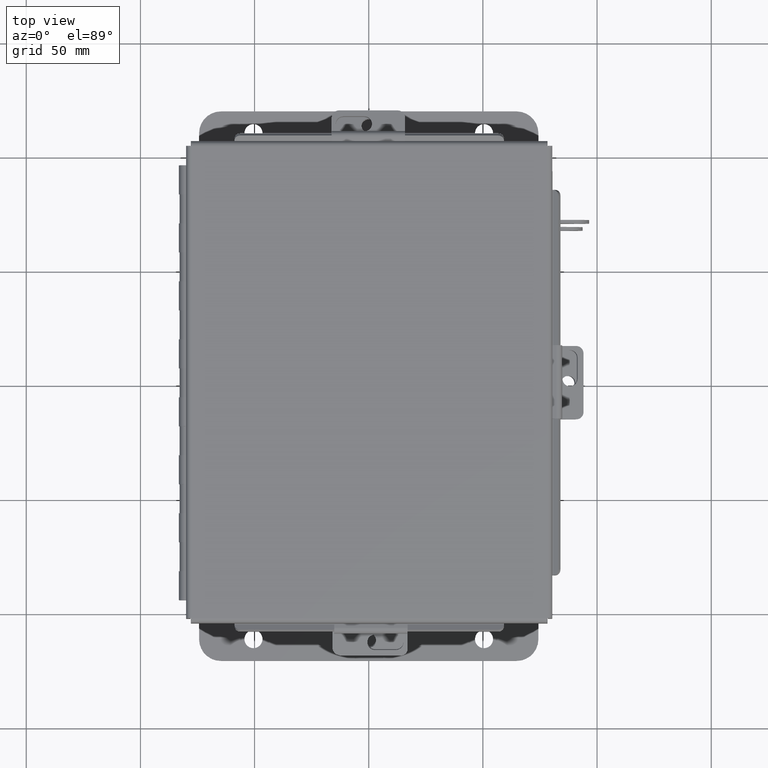
[diagram: clean part render]
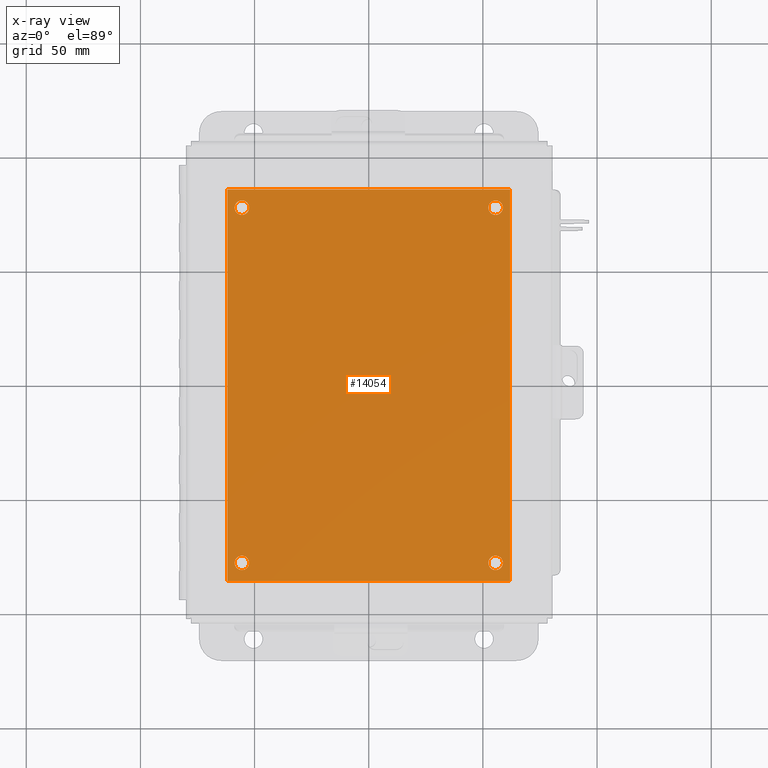
[diagram: x-ray — body ghosted, one internal face saturated and labeled with its STEP entity id]
A machine part, top view, then the same camera in x-ray: the body is ghosted and one INTERNAL B-rep face — a face not visible from any outside direction — is saturated and labeled: STEP entity #14054.
In plain terms, the highlighted planar face has unit normal (0, 0, -1).
Its self-contained STEP definition (entity closure, byte-faithful):
#297 = ORIENTED_EDGE ( 'NONE', *, *, #9512, .F. ) ;
#352 = AXIS2_PLACEMENT_3D ( 'NONE', #9083, #1986, #10310 ) ;
#687 = CARTESIAN_POINT ( 'NONE',  ( 4.750000000000000000, 6.437999999999997900, 0.0000000000000000000 ) ) ;
#771 = CIRCLE ( 'NONE', #2818, 0.1250000000000000300 ) ;
#871 = CARTESIAN_POINT ( 'NONE',  ( 0.3750000000000020000, 0.3120000000000015000, 0.0000000000000000000 ) ) ;
#1715 = EDGE_LOOP ( 'NONE', ( #9722, #7847 ) ) ;
#1952 = EDGE_CURVE ( 'NONE', #6156, #12647, #12125, .T. ) ;
#1986 = DIRECTION ( 'NONE',  ( 0.0000000000000000000, 0.0000000000000000000, 1.000000000000000000 ) ) ;
#2142 = VERTEX_POINT ( 'NONE', #11880 ) ;
#2636 = CARTESIAN_POINT ( 'NONE',  ( 0.0000000000000000000, 0.0000000000000000000, 0.0000000000000000000 ) ) ;
#2818 = AXIS2_PLACEMENT_3D ( 'NONE', #6455, #14737, #7664 ) ;
#3068 = EDGE_LOOP ( 'NONE', ( #7428, #6216 ) ) ;
#3304 = CIRCLE ( 'NONE', #352, 0.1249999999999999000 ) ;
#3471 = CARTESIAN_POINT ( 'NONE',  ( 0.0000000000000000000, 0.0000000000000000000, 0.0000000000000000000 ) ) ;
#3575 = CARTESIAN_POINT ( 'NONE',  ( 0.3750000000000001100, 6.437999999999997900, 0.0000000000000000000 ) ) ;
#3589 = ORIENTED_EDGE ( 'NONE', *, *, #14144, .F. ) ;
#3619 = VECTOR ( 'NONE', #7074, 39.37007874015748100 ) ;
#3708 = CARTESIAN_POINT ( 'NONE',  ( 4.625000000000001800, 0.3120000000000020500, 0.0000000000000000000 ) ) ;
#3731 = EDGE_CURVE ( 'NONE', #11478, #13045, #8740, .T. ) ;
#3876 = EDGE_CURVE ( 'NONE', #13778, #11002, #10425, .T. ) ;
#3911 = DIRECTION ( 'NONE',  ( 0.0000000000000000000, 0.0000000000000000000, -1.000000000000000000 ) ) ;
#3919 = FACE_OUTER_BOUND ( 'NONE', #12716, .T. ) ;
#3943 = LINE ( 'NONE', #4819, #13020 ) ;
#4131 = CARTESIAN_POINT ( 'NONE',  ( 0.2500000000000020000, 0.3120000000000015000, 0.0000000000000000000 ) ) ;
#4149 = VECTOR ( 'NONE', #15083, 39.37007874015748100 ) ;
#4295 = FACE_BOUND ( 'NONE', #1715, .T. ) ;
#4369 = AXIS2_PLACEMENT_3D ( 'NONE', #5392, #13644, #6558 ) ;
#4432 = AXIS2_PLACEMENT_3D ( 'NONE', #12370, #5290, #13550 ) ;
#4769 = DIRECTION ( 'NONE',  ( 0.0000000000000000000, 1.000000000000000000, 0.0000000000000000000 ) ) ;
#4819 = CARTESIAN_POINT ( 'NONE',  ( 4.875000000000000000, 0.0000000000000000000, 0.0000000000000000000 ) ) ;
#4917 = DIRECTION ( 'NONE',  ( 1.000000000000000000, 0.0000000000000000000, 0.0000000000000000000 ) ) ;
#5101 = AXIS2_PLACEMENT_3D ( 'NONE', #4131, #12426, #5352 ) ;
#5290 = DIRECTION ( 'NONE',  ( 0.0000000000000000000, 0.0000000000000000000, 1.000000000000000000 ) ) ;
#5352 = DIRECTION ( 'NONE',  ( -1.000000000000000000, 0.0000000000000000000, 0.0000000000000000000 ) ) ;
#5392 = CARTESIAN_POINT ( 'NONE',  ( 4.625000000000001800, 0.3120000000000020500, 0.0000000000000000000 ) ) ;
#5427 = ORIENTED_EDGE ( 'NONE', *, *, #13425, .F. ) ;
#5547 = VERTEX_POINT ( 'NONE', #3575 ) ;
#5745 = CARTESIAN_POINT ( 'NONE',  ( 4.500000000000000900, 6.437999999999997900, 0.0000000000000000000 ) ) ;
#6027 = CARTESIAN_POINT ( 'NONE',  ( 4.500000000000002700, 0.3120000000000020500, 0.0000000000000000000 ) ) ;
#6156 = VERTEX_POINT ( 'NONE', #6179 ) ;
#6179 = CARTESIAN_POINT ( 'NONE',  ( 4.875000000000000000, 6.750000000000000000, 0.0000000000000000000 ) ) ;
#6216 = ORIENTED_EDGE ( 'NONE', *, *, #6722, .F. ) ;
#6455 = CARTESIAN_POINT ( 'NONE',  ( 0.2500000000000000600, 6.437999999999997900, 0.0000000000000000000 ) ) ;
#6461 = CARTESIAN_POINT ( 'NONE',  ( 0.1250000000000019200, 0.3120000000000015000, 0.0000000000000000000 ) ) ;
#6465 = ORIENTED_EDGE ( 'NONE', *, *, #3731, .T. ) ;
#6558 = DIRECTION ( 'NONE',  ( 1.000000000000000000, 0.0000000000000000000, 0.0000000000000000000 ) ) ;
#6583 = CIRCLE ( 'NONE', #14834, 0.1249999999999999000 ) ;
#6615 = CARTESIAN_POINT ( 'NONE',  ( 4.625000000000000900, 6.437999999999997900, 0.0000000000000000000 ) ) ;
#6647 = ORIENTED_EDGE ( 'NONE', *, *, #1952, .T. ) ;
#6654 = ORIENTED_EDGE ( 'NONE', *, *, #7996, .T. ) ;
#6722 = EDGE_CURVE ( 'NONE', #14592, #11968, #6583, .T. ) ;
#6790 = LINE ( 'NONE', #3471, #3619 ) ;
#7073 = DIRECTION ( 'NONE',  ( 0.0000000000000000000, 0.0000000000000000000, 1.000000000000000000 ) ) ;
#7074 = DIRECTION ( 'NONE',  ( -0.0000000000000000000, -1.000000000000000000, -0.0000000000000000000 ) ) ;
#7080 = FACE_BOUND ( 'NONE', #10742, .T. ) ;
#7307 = AXIS2_PLACEMENT_3D ( 'NONE', #14167, #7073, #15341 ) ;
#7428 = ORIENTED_EDGE ( 'NONE', *, *, #12058, .F. ) ;
#7485 = CARTESIAN_POINT ( 'NONE',  ( 0.0000000000000000000, 6.750000000000000000, 0.0000000000000000000 ) ) ;
#7623 = CARTESIAN_POINT ( 'NONE',  ( 0.0000000000000000000, 0.0000000000000000000, 0.0000000000000000000 ) ) ;
#7664 = DIRECTION ( 'NONE',  ( 1.000000000000000000, 0.0000000000000000000, 0.0000000000000000000 ) ) ;
#7745 = CIRCLE ( 'NONE', #4369, 0.1249999999999999000 ) ;
#7768 = VERTEX_POINT ( 'NONE', #871 ) ;
#7817 = CIRCLE ( 'NONE', #7307, 0.1250000000000000600 ) ;
#7823 = DIRECTION ( 'NONE',  ( -1.000000000000000000, 0.0000000000000000000, 0.0000000000000000000 ) ) ;
#7847 = ORIENTED_EDGE ( 'NONE', *, *, #3876, .F. ) ;
#7996 = EDGE_CURVE ( 'NONE', #13045, #6156, #3943, .T. ) ;
#7997 = CARTESIAN_POINT ( 'NONE',  ( 0.0000000000000000000, 6.750000000000000000, 0.0000000000000000000 ) ) ;
#8740 = LINE ( 'NONE', #7623, #11894 ) ;
#8957 = CIRCLE ( 'NONE', #5101, 0.1250000000000000600 ) ;
#9083 = CARTESIAN_POINT ( 'NONE',  ( 4.625000000000000900, 6.437999999999997900, 0.0000000000000000000 ) ) ;
#9189 = EDGE_LOOP ( 'NONE', ( #9240, #5427 ) ) ;
#9240 = ORIENTED_EDGE ( 'NONE', *, *, #14524, .F. ) ;
#9512 = EDGE_CURVE ( 'NONE', #5547, #2142, #10243, .T. ) ;
#9722 = ORIENTED_EDGE ( 'NONE', *, *, #10400, .F. ) ;
#9736 = PLANE ( 'NONE',  #14249 ) ;
#10243 = CIRCLE ( 'NONE', #4432, 0.1250000000000000300 ) ;
#10261 = FACE_BOUND ( 'NONE', #9189, .T. ) ;
#10310 = DIRECTION ( 'NONE',  ( -1.000000000000000000, 0.0000000000000000000, 0.0000000000000000000 ) ) ;
#10400 = EDGE_CURVE ( 'NONE', #11002, #13778, #3304, .T. ) ;
#10425 = CIRCLE ( 'NONE', #14792, 0.1249999999999999000 ) ;
#10595 = CARTESIAN_POINT ( 'NONE',  ( 4.875000000000000000, 0.0000000000000000000, 0.0000000000000000000 ) ) ;
#10742 = EDGE_LOOP ( 'NONE', ( #297, #3589 ) ) ;
#11002 = VERTEX_POINT ( 'NONE', #687 ) ;
#11036 = CARTESIAN_POINT ( 'NONE',  ( 0.0000000000000000000, 0.0000000000000000000, 0.0000000000000000000 ) ) ;
#11427 = ORIENTED_EDGE ( 'NONE', *, *, #12375, .T. ) ;
#11478 = VERTEX_POINT ( 'NONE', #2636 ) ;
#11880 = CARTESIAN_POINT ( 'NONE',  ( 0.1250000000000000600, 6.437999999999997900, 0.0000000000000000000 ) ) ;
#11894 = VECTOR ( 'NONE', #14696, 39.37007874015748100 ) ;
#11968 = VERTEX_POINT ( 'NONE', #14506 ) ;
#12018 = DIRECTION ( 'NONE',  ( 0.0000000000000000000, 0.0000000000000000000, 1.000000000000000000 ) ) ;
#12058 = EDGE_CURVE ( 'NONE', #11968, #14592, #7745, .T. ) ;
#12125 = LINE ( 'NONE', #7997, #4149 ) ;
#12211 = DIRECTION ( 'NONE',  ( -1.000000000000000000, 0.0000000000000000000, -0.0000000000000000000 ) ) ;
#12370 = CARTESIAN_POINT ( 'NONE',  ( 0.2500000000000000600, 6.437999999999997900, 0.0000000000000000000 ) ) ;
#12375 = EDGE_CURVE ( 'NONE', #12647, #11478, #6790, .T. ) ;
#12426 = DIRECTION ( 'NONE',  ( 0.0000000000000000000, 0.0000000000000000000, 1.000000000000000000 ) ) ;
#12647 = VERTEX_POINT ( 'NONE', #7485 ) ;
#12716 = EDGE_LOOP ( 'NONE', ( #11427, #6465, #6654, #6647 ) ) ;
#13020 = VECTOR ( 'NONE', #4769, 39.37007874015748100 ) ;
#13045 = VERTEX_POINT ( 'NONE', #10595 ) ;
#13372 = FACE_BOUND ( 'NONE', #3068, .T. ) ;
#13425 = EDGE_CURVE ( 'NONE', #15197, #7768, #8957, .T. ) ;
#13550 = DIRECTION ( 'NONE',  ( 1.000000000000000000, 0.0000000000000000000, 0.0000000000000000000 ) ) ;
#13644 = DIRECTION ( 'NONE',  ( 0.0000000000000000000, 0.0000000000000000000, 1.000000000000000000 ) ) ;
#13778 = VERTEX_POINT ( 'NONE', #5745 ) ;
#14054 = ADVANCED_FACE ( 'NONE', ( #10261, #13372, #4295, #7080, #3919 ), #9736, .F. ) ;
#14144 = EDGE_CURVE ( 'NONE', #2142, #5547, #771, .T. ) ;
#14167 = CARTESIAN_POINT ( 'NONE',  ( 0.2500000000000020000, 0.3120000000000015000, 0.0000000000000000000 ) ) ;
#14249 = AXIS2_PLACEMENT_3D ( 'NONE', #11036, #3911, #12211 ) ;
#14506 = CARTESIAN_POINT ( 'NONE',  ( 4.750000000000001800, 0.3120000000000020500, 0.0000000000000000000 ) ) ;
#14524 = EDGE_CURVE ( 'NONE', #7768, #15197, #7817, .T. ) ;
#14592 = VERTEX_POINT ( 'NONE', #6027 ) ;
#14696 = DIRECTION ( 'NONE',  ( 1.000000000000000000, 0.0000000000000000000, 0.0000000000000000000 ) ) ;
#14737 = DIRECTION ( 'NONE',  ( 0.0000000000000000000, 0.0000000000000000000, 1.000000000000000000 ) ) ;
#14792 = AXIS2_PLACEMENT_3D ( 'NONE', #6615, #14900, #7823 ) ;
#14834 = AXIS2_PLACEMENT_3D ( 'NONE', #3708, #12018, #4917 ) ;
#14900 = DIRECTION ( 'NONE',  ( 0.0000000000000000000, 0.0000000000000000000, 1.000000000000000000 ) ) ;
#15083 = DIRECTION ( 'NONE',  ( -1.000000000000000000, -0.0000000000000000000, -0.0000000000000000000 ) ) ;
#15197 = VERTEX_POINT ( 'NONE', #6461 ) ;
#15341 = DIRECTION ( 'NONE',  ( -1.000000000000000000, 0.0000000000000000000, 0.0000000000000000000 ) ) ;